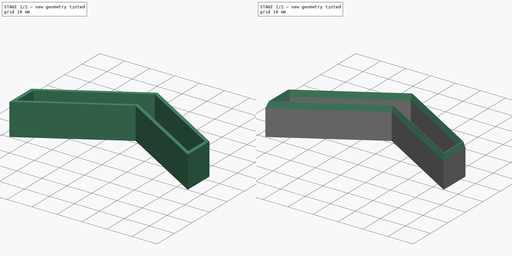
[diagram: build sequence overview — one tinted view per stage of 2, left to right]
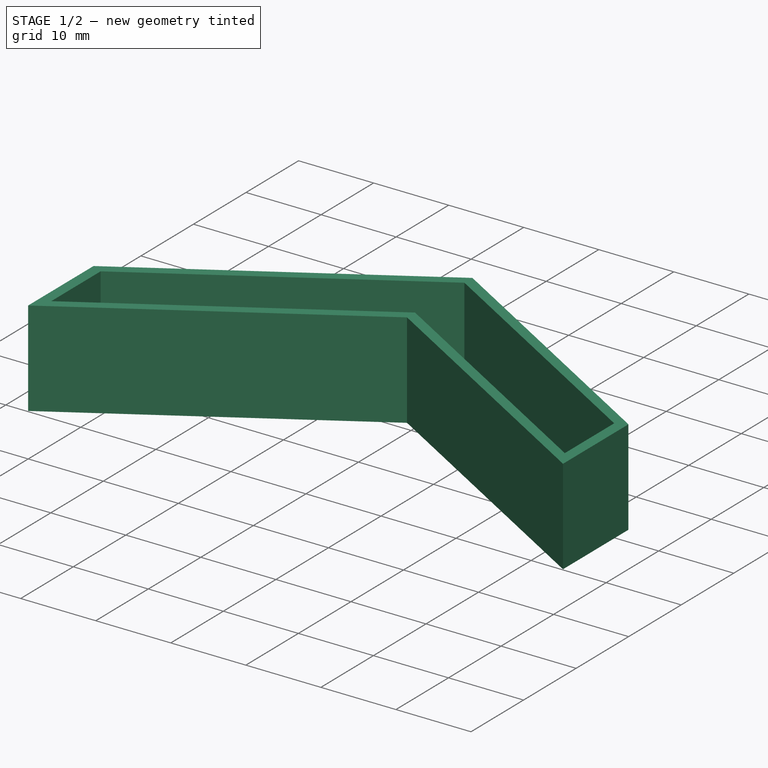
[diagram: stage 1 of 2 — iso view after this stage's code; geometry added in this stage tinted green]
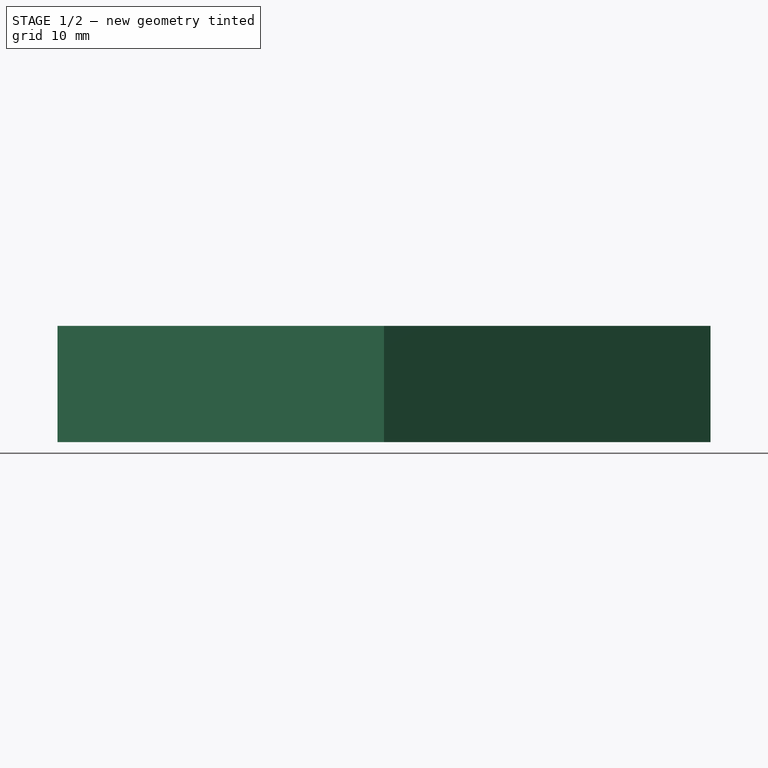
[diagram: stage 1 of 2 — front view after this stage's code; geometry added in this stage tinted green]
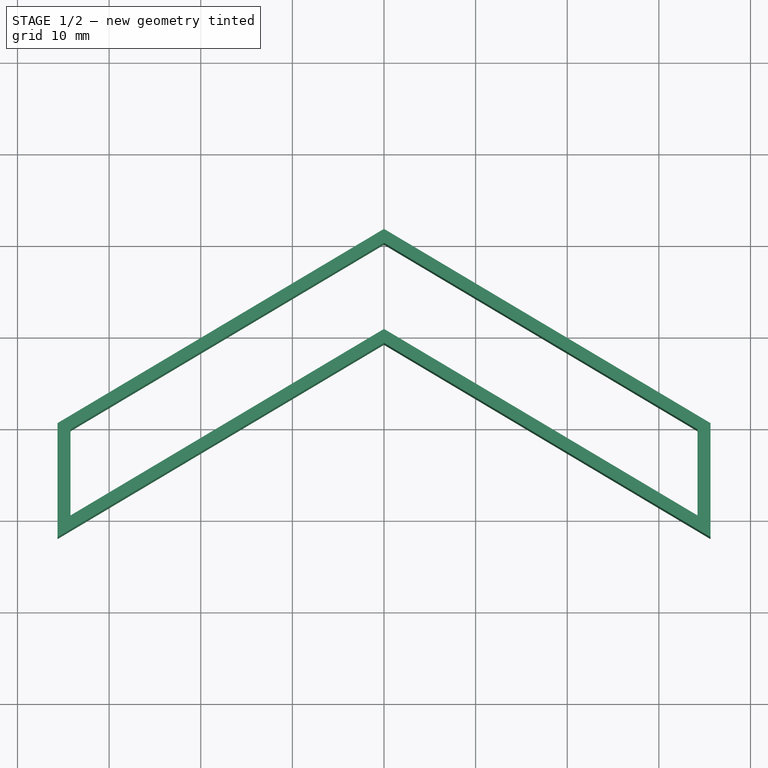
[diagram: stage 1 of 2 — top view after this stage's code; geometry added in this stage tinted green]
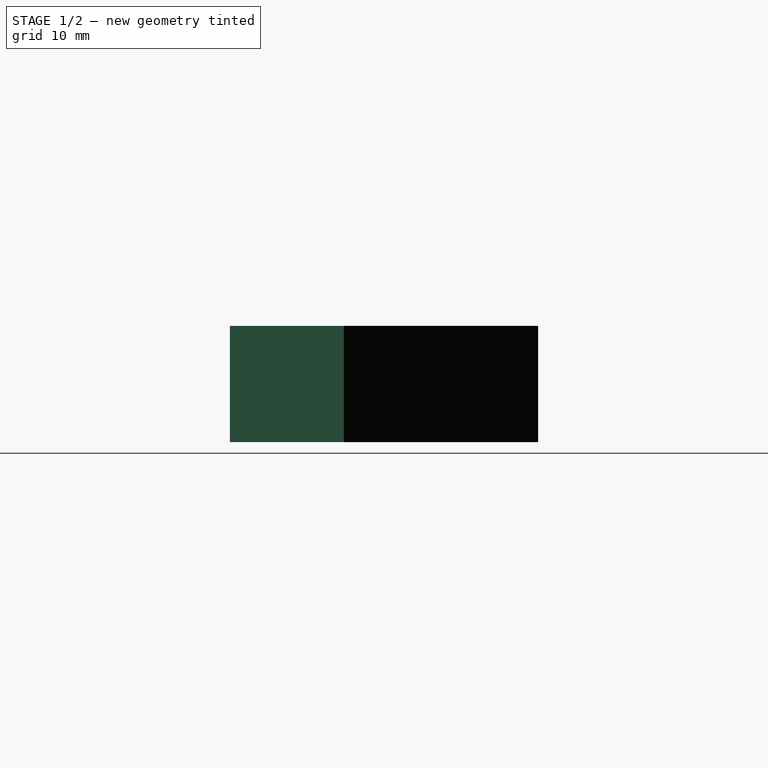
[diagram: stage 1 of 2 — right view after this stage's code; geometry added in this stage tinted green]
FCSTD DOCUMENT  (FreeCAD 0.20R26651 (Git))
Label: Chevron_Stamp
License: All rights reserved
LicenseURL: http://en.wikipedia.org/wiki/All_rights_reserved
objects: Sketcher::SketchObject×1, PartDesign::Pad×1, PartDesign::Chamfer×1, PartDesign::Body×1
note: 6 computed .brp shape members not serialized (recipe doc carries the construction recipe); baked Part::Feature solids carry a one-line shape summary decoded from their .brp

FEATURE [Sketcher::SketchObject] Sketch
  FullyConstrained = true
  MapMode = 5
  Support = -> [XY_Plane]
  sketch-geometry (25):
    g0: LineSegment StartX=0 StartY=0 StartZ=0 EndX=-34.925 EndY=-20.7811 EndZ=0
    g1: LineSegment StartX=-34.925 StartY=-20.7811 StartZ=0 EndX=34.925 EndY=-20.7811 EndZ=0
    g2: LineSegment StartX=34.925 StartY=-20.7811 StartZ=0 EndX=0 EndY=0 EndZ=0
    g3: LineSegment StartX=34.925 StartY=-20.7811 StartZ=0 EndX=34.925 EndY=-9.8591 EndZ=0
    g4: LineSegment StartX=34.925 StartY=-9.8591 StartZ=0 EndX=0 EndY=10.922 EndZ=0
    g5: LineSegment StartX=0 StartY=10.922 StartZ=0 EndX=-34.925 EndY=-9.8591 EndZ=0
    g6: LineSegment StartX=-34.925 StartY=-9.8591 StartZ=0 EndX=-34.925 EndY=-20.7811 EndZ=0
    g7: LineSegment StartX=0 StartY=11.684 StartZ=0 EndX=-35.6362 EndY=-9.52028 EndZ=0
    g8: LineSegment StartX=-35.6362 StartY=-9.52028 StartZ=0 EndX=-35.6362 EndY=-21.9663 EndZ=0
    g9: LineSegment StartX=35.6362 StartY=-21.9663 StartZ=0 EndX=35.6362 EndY=-9.52028 EndZ=0
    g10: LineSegment StartX=35.6362 StartY=-9.52028 StartZ=0 EndX=0 EndY=11.684 EndZ=0
    g11: LineSegment StartX=0 StartY=10.16 StartZ=0 EndX=-34.2138 EndY=-10.1979 EndZ=0
    g12: LineSegment StartX=-34.2138 StartY=-10.1979 StartZ=0 EndX=-34.2138 EndY=-19.5959 EndZ=0
    g13: LineSegment StartX=-34.2138 StartY=-19.5959 StartZ=0 EndX=0 EndY=0.762 EndZ=0
    g14: LineSegment StartX=0 StartY=0.762 StartZ=0 EndX=34.2138 EndY=-19.5959 EndZ=0
    g15: LineSegment StartX=34.2138 StartY=-19.5959 StartZ=0 EndX=34.2138 EndY=-10.1979 EndZ=0
    g16: LineSegment StartX=34.2138 StartY=-10.1979 StartZ=0 EndX=0 EndY=10.16 EndZ=0
    g17: LineSegment StartX=-35.6362 StartY=-21.9663 StartZ=0 EndX=0 EndY=-0.762 EndZ=0
    g18: LineSegment StartX=0 StartY=-0.762 StartZ=0 EndX=35.6362 EndY=-21.9663 EndZ=0
    g19: LineSegment StartX=0 StartY=0 StartZ=0 EndX=0 EndY=-0.762 EndZ=0
    g20: LineSegment StartX=0 StartY=0 StartZ=0 EndX=0 EndY=0.762 EndZ=0
    g21: LineSegment StartX=0 StartY=10.922 StartZ=0 EndX=0 EndY=10.16 EndZ=0
    g22: LineSegment StartX=0 StartY=11.684 StartZ=0 EndX=0 EndY=10.922 EndZ=0
    g23: LineSegment StartX=34.2138 StartY=-15.7433 StartZ=0 EndX=34.925 EndY=-15.7433 EndZ=0
    g24: LineSegment StartX=34.925 StartY=-15.7433 StartZ=0 EndX=35.6362 EndY=-15.7433 EndZ=0
  constraints (69):
    c: Coincident(g0,g-1)
    c: Coincident(g1,g0)
    c: Horizontal(g1)
    c: Coincident(g2,g-1)
    c: Coincident(g3,g2)
    c: Vertical(g3)
    c: Coincident(g4,g3)
    c: PointOnObject(g4,g-2)
    c: Coincident(g5,g4)
    c: Coincident(g6,g5)
    c: Coincident(g6,g0)
    c: Coincident(g1,g2)
    c: Distance(g0) = 40.64
    c: Distance(g3) = 10.922
    c: Distance(g1) = 69.85
    c: Vertical(g6)
    c: Equal(g0,g2)
    c: Equal(g2,g4)
    c: Equal(g4,g5)
    c: PointOnObject(g7,g-2)
    c: Coincident(g8,g7)
    c: Vertical(g9)
    c: Coincident(g10,g9)
    c: Coincident(g10,g7)
    c: Vertical(g8)
    c: PointOnObject(g11,g-2)
    c: Coincident(g12,g11)
    c: Coincident(g13,g12)
    c: Coincident(g14,g13)
    c: Coincident(g15,g14)
    c: Vertical(g15)
    c: Coincident(g16,g15)
    c: Coincident(g16,g11)
    c: Vertical(g12)
    c: Coincident(g17,g8)
    c: PointOnObject(g17,g-2)
    c: Coincident(g18,g17)
    c: Coincident(g18,g9)
    c: Parallel(g18,g14)
    c: Parallel(g17,g13)
    c: Parallel(g11,g7)
    c: Parallel(g16,g10)
    c: PointOnObject(g13,g-2)
    c: Coincident(g19,g-1)
    c: Coincident(g19,g17)
    c: Coincident(g20,g-1)
    c: Coincident(g20,g13)
    c: Coincident(g21,g4)
    c: Coincident(g21,g11)
    c: Coincident(g22,g7)
    c: Coincident(g22,g4)
    c: PointOnObject(g23,g15)
    c: PointOnObject(g23,g3)
    c: Horizontal(g23)
    c: Coincident(g24,g23)
    c: Horizontal(g24)
    c: Symmetric(g9,g9,g24)
    c: Parallel(g16,g4)
    c: Parallel(g18,g2)
    c: Parallel(g17,g0)
    c: Parallel(g5,g11)
    c: Equal(g21,g22)
    c: Equal(g22,g20)
    c: Equal(g20,g19)
    c: Distance(g20) = 0.762
    c: Equal(g23,g24)
    c: Distance(g23) = 0.7112
    c: Equal(g14,g13)
    c: Equal(g18,g17)
FEATURE [PartDesign::Pad] Pad
  Direction = (0,0,1)
  Length = 12.7
  Length2 = 100.076
  Profile = -> Sketch
  ReferenceAxis = -> Sketch [N_Axis]
  Type = 0
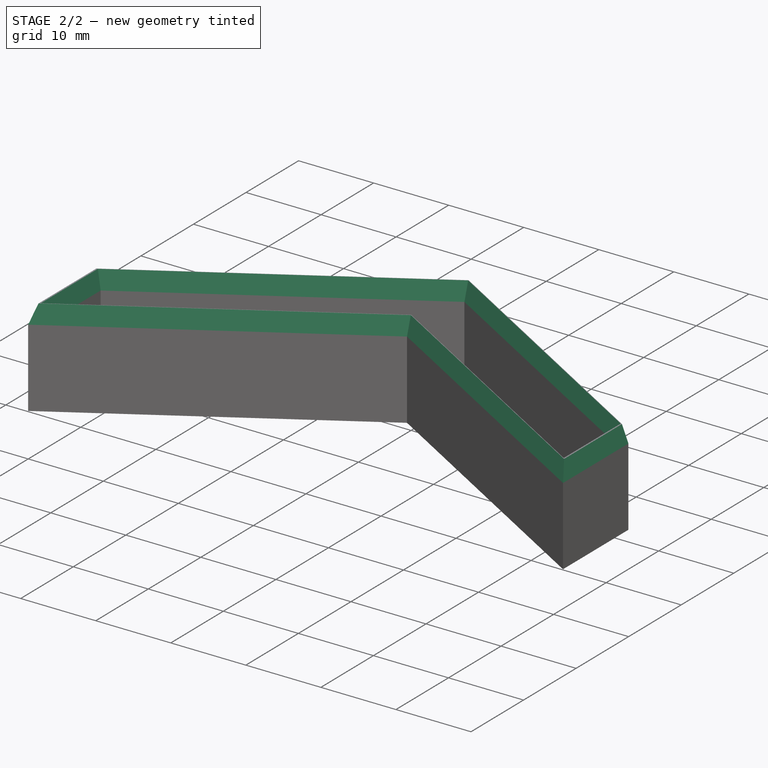
[diagram: stage 2 of 2 — iso view after this stage's code; geometry added in this stage tinted green]
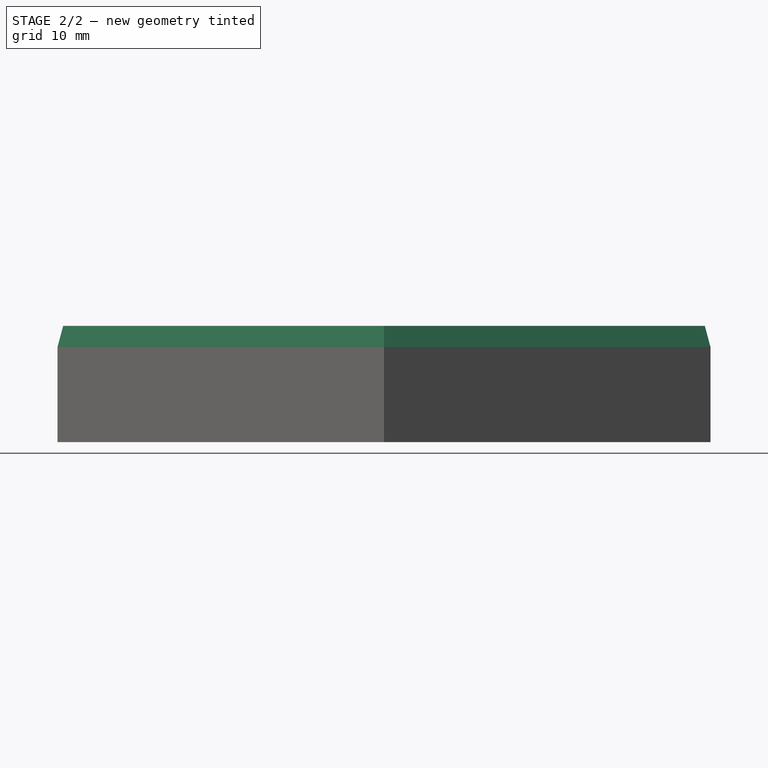
[diagram: stage 2 of 2 — front view after this stage's code; geometry added in this stage tinted green]
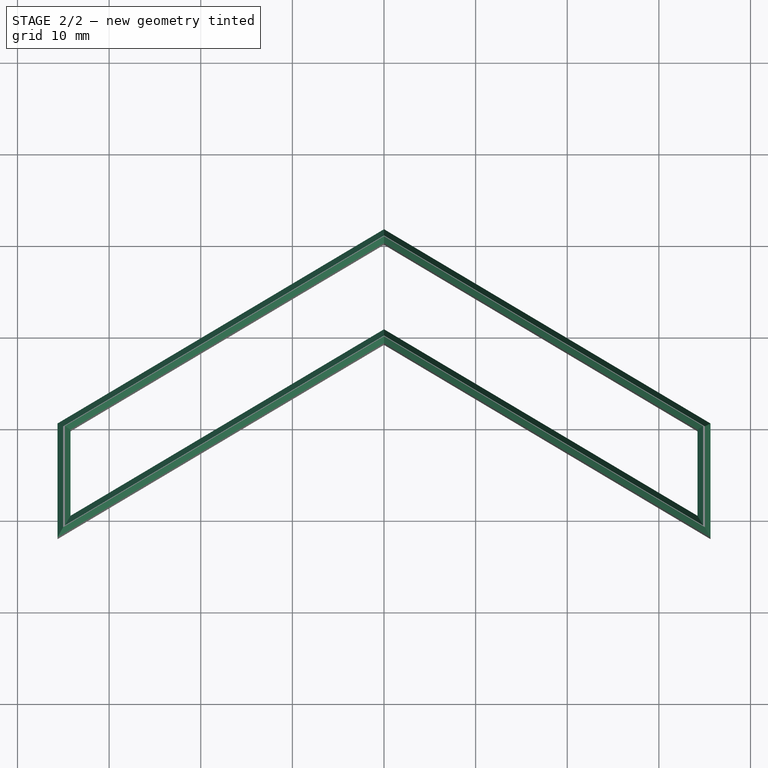
[diagram: stage 2 of 2 — top view after this stage's code; geometry added in this stage tinted green]
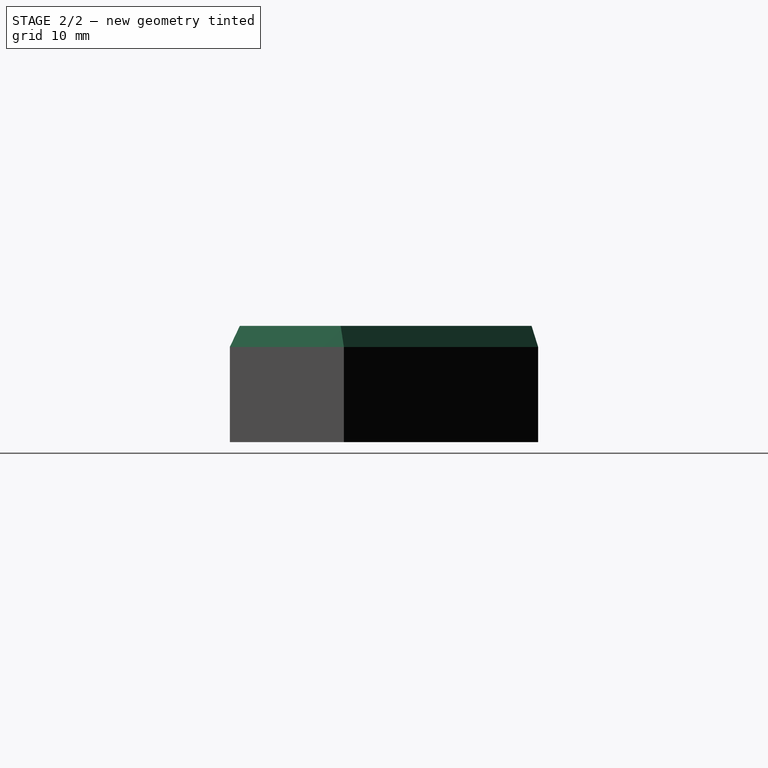
[diagram: stage 2 of 2 — right view after this stage's code; geometry added in this stage tinted green]
FEATURE [PartDesign::Chamfer] Chamfer
  Angle = 75
  Base = -> Pad [Face14]
  BaseFeature = -> Pad
  ChamferType = 2
  FlipDirection = false
  Size = 0.619001
  Size2 = 1
  SupportTransform = false
FEATURE [PartDesign::Body] Body  label="Chevron Stamp Body"
  Group = -> [Sketch,Pad,Chamfer]
  Origin = -> Origin
  Tip = -> Chamfer
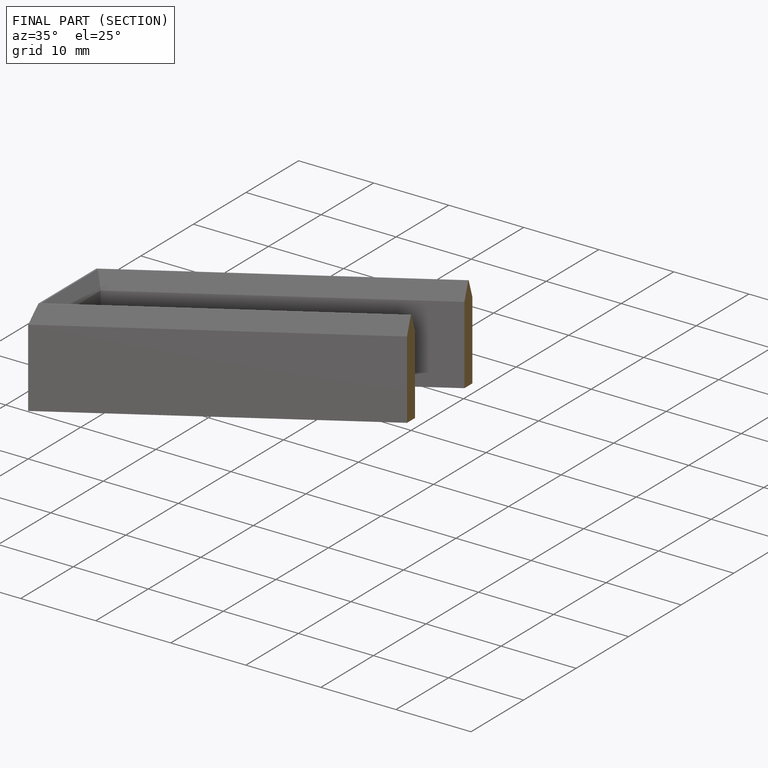
[diagram: finished part — half-section view (interior)]
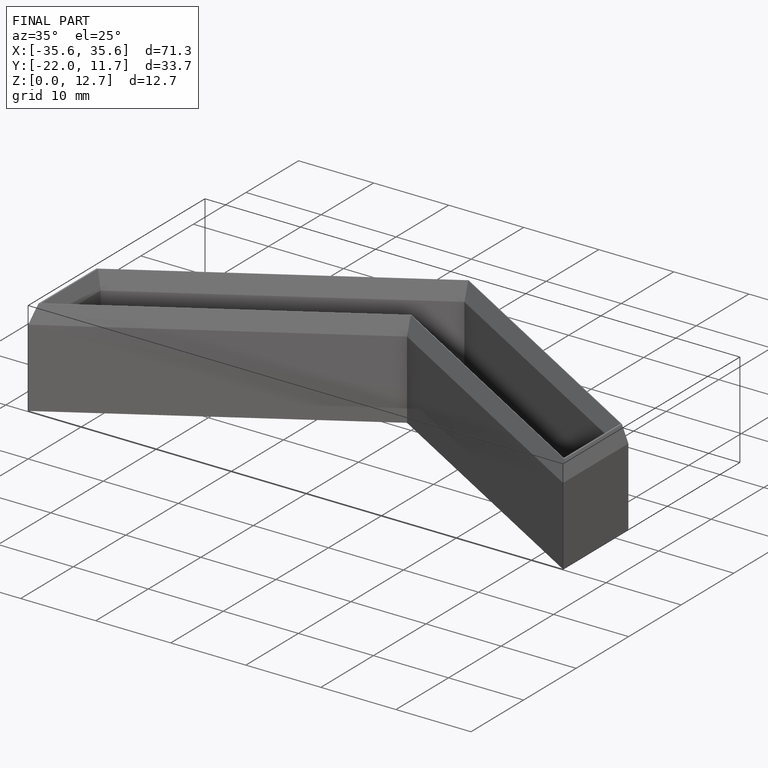
[diagram: finished part — iso view with bounding-box wireframe]
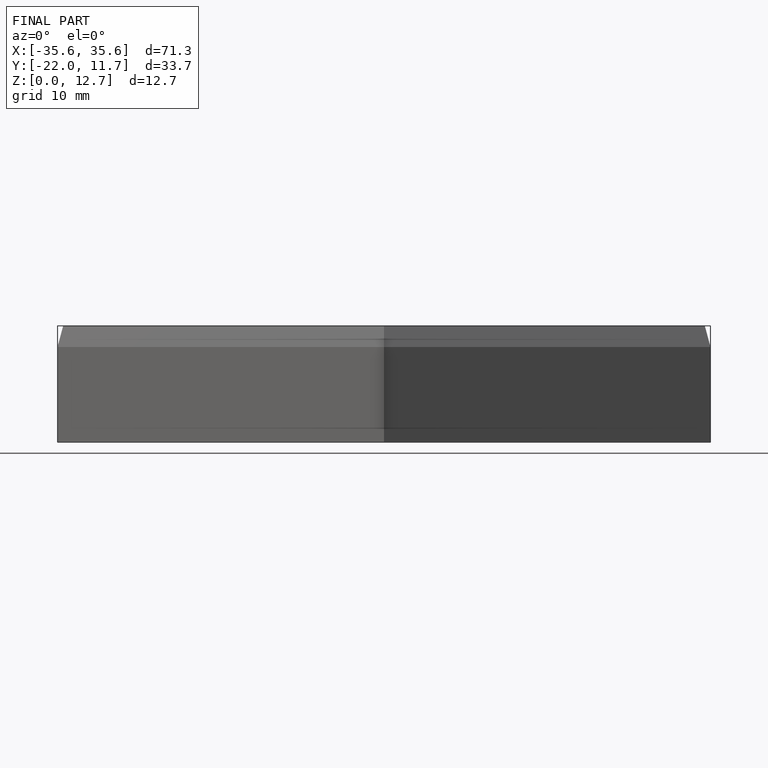
[diagram: finished part — front view with bounding-box wireframe]
